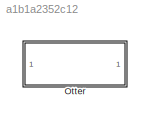
MODEL slx_a1b1a2352c12
KIND library
CONFIG AbsTol = auto
CONFIG EnableMultiTasking = off
CONFIG FixedStep = auto
CONFIG MaxStep = auto
CONFIG MinStep = auto
CONFIG RelTol = 1e-3
CONFIG SampleTimeConstraint = Unconstrained
CONFIG SolverName = VariableStepAuto
CONFIG StartTime = 0.0
CONFIG StopTime = 10.0
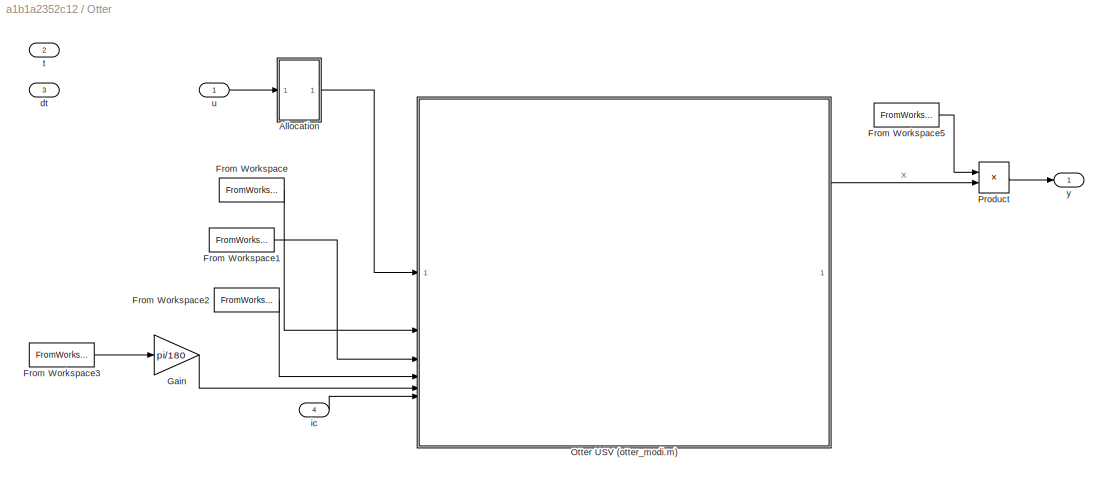
BLOCK [SubSystem] Otter
  Tag = system;__cs_slx_sys;
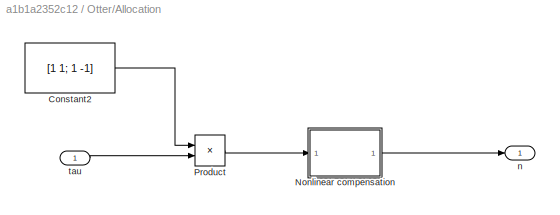
BLOCK [SubSystem] Otter/Allocation
BLOCK [Constant] Otter/Allocation/Constant2
  Value = [1 1; 1 -1]
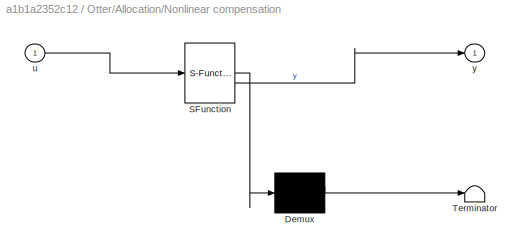
BLOCK [SubSystem] Otter/Allocation/Nonlinear compensation
  ErrorFcn = Stateflow.Translate.translate
  PermitHierarchicalResolution = ExplicitOnly
  SFBlockType = MATLAB Function
  TreatAsAtomicUnit = on
BLOCK [Demux] Otter/Allocation/Nonlinear compensation/ Demux 
  Outputs = 1
BLOCK [S-Function] Otter/Allocation/Nonlinear compensation/ SFunction 
  EnableBusSupport = off
  FunctionName = sf_sfun
  PortCounts = [1 2]
  SFcnIsStateOwnerBlock = off
  SFunctionDeploymentMode = off
  Tag = Stateflow S-Function 2
BLOCK [Terminator] Otter/Allocation/Nonlinear compensation/ Terminator 
BLOCK [Inport] Otter/Allocation/Nonlinear compensation/u
BLOCK [Outport] Otter/Allocation/Nonlinear compensation/y
BLOCK [Product] Otter/Allocation/Product
  Multiplication = Matrix(*)
BLOCK [Outport] Otter/Allocation/n
BLOCK [Inport] Otter/Allocation/tau
BLOCK [FromWorkspace] Otter/From Workspace
  OutputAfterFinalValue = Holding final value
  SampleTime = -1
  VariableName = params.payload_mass
BLOCK [FromWorkspace] Otter/From Workspace1
  OutputAfterFinalValue = Holding final value
  SampleTime = -1
  VariableName = params.payload_location
BLOCK [FromWorkspace] Otter/From Workspace2
  OutputAfterFinalValue = Holding final value
  SampleTime = -1
  VariableName = params.current_speed
BLOCK [FromWorkspace] Otter/From Workspace3
  OutputAfterFinalValue = Holding final value
  SampleTime = -1
  VariableName = params.current_direction
BLOCK [FromWorkspace] Otter/From Workspace5
  OutputAfterFinalValue = Holding final value
  SampleTime = -1
  VariableName = params.out_gain
BLOCK [Gain] Otter/Gain
  Gain = pi/180
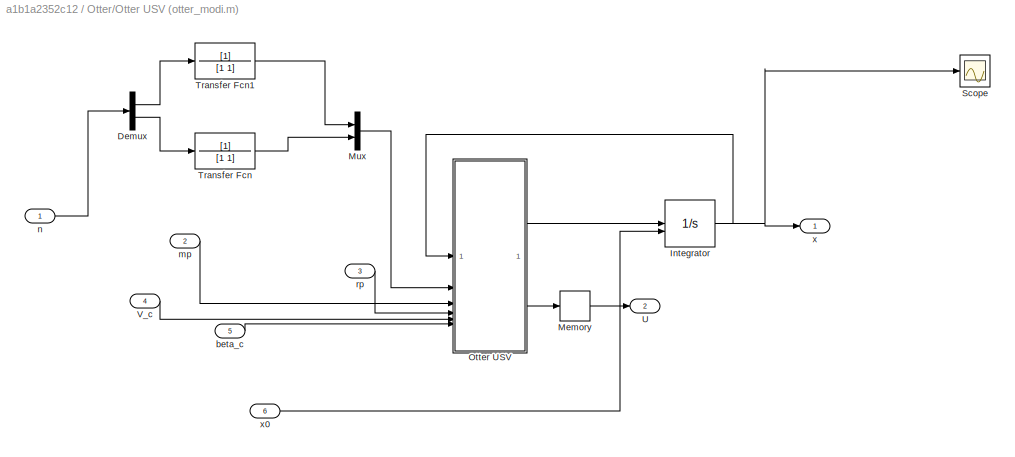
BLOCK [SubSystem] Otter/Otter USV (otter_modi.m) 
  AncestorBlock = mssSimulink/Marine craft models/Otter USV (otter.m)
  LibrarySourceBlock = mssSimulink/Marine craft models/Otter USV (otter.m)
BLOCK [Demux] Otter/Otter USV (otter_modi.m) /Demux
  Outputs = 2
BLOCK [Integrator] Otter/Otter USV (otter_modi.m) /Integrator
  InitialCondition = [1 1]
  InitialConditionSource = external
  LowerSaturationLimit = -10
  UpperSaturationLimit = 10
BLOCK [Memory] Otter/Otter USV (otter_modi.m) /Memory
BLOCK [Mux] Otter/Otter USV (otter_modi.m) /Mux
  DisplayOption = bar
  Inputs = 2
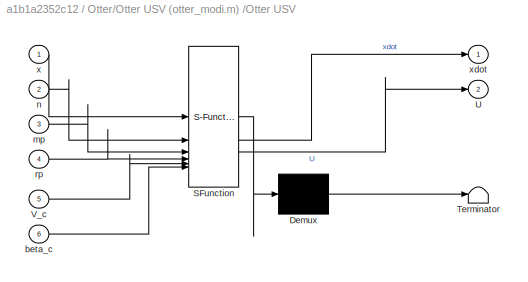
BLOCK [SubSystem] Otter/Otter USV (otter_modi.m) /Otter USV
  ErrorFcn = Stateflow.Translate.translate
  PermitHierarchicalResolution = ExplicitOnly
  SFBlockType = MATLAB Function
  TreatAsAtomicUnit = on
BLOCK [Demux] Otter/Otter USV (otter_modi.m) /Otter USV/ Demux 
  Outputs = 1
BLOCK [S-Function] Otter/Otter USV (otter_modi.m) /Otter USV/ SFunction 
  EnableBusSupport = off
  FunctionName = sf_sfun
  PortCounts = [6 3]
  SFcnIsStateOwnerBlock = off
  SFunctionDeploymentMode = off
  Tag = Stateflow S-Function 3
BLOCK [Terminator] Otter/Otter USV (otter_modi.m) /Otter USV/ Terminator 
BLOCK [Outport] Otter/Otter USV (otter_modi.m) /Otter USV/U
  Port = 2
BLOCK [Inport] Otter/Otter USV (otter_modi.m) /Otter USV/V_c
  Port = 5
BLOCK [Inport] Otter/Otter USV (otter_modi.m) /Otter USV/beta_c
  Port = 6
BLOCK [Inport] Otter/Otter USV (otter_modi.m) /Otter USV/mp
  Port = 3
BLOCK [Inport] Otter/Otter USV (otter_modi.m) /Otter USV/n
  Port = 2
BLOCK [Inport] Otter/Otter USV (otter_modi.m) /Otter USV/rp
  Port = 4
BLOCK [Inport] Otter/Otter USV (otter_modi.m) /Otter USV/x
BLOCK [Outport] Otter/Otter USV (otter_modi.m) /Otter USV/xdot
BLOCK [Scope] Otter/Otter USV (otter_modi.m) /Scope
  Floating = off
  NumInputPorts = 1
  ScopeSpecificationString = Simulink.scopes.TimeScopeBlockCfg('CurrentConfiguration', extmgr.ConfigurationSet(extmgr.Configuration('Core','General UI',true),extmgr.Configuration('Core','Source UI',true),extmgr.Configuration('Sources','WiredSimulink',true,'DataLoggingVariableName','ScopeData1'),extmgr.Configuration('Visuals','Time Domain',true,'SerializedDisplays',{struct('MinYLimReal','-1.29073','MaxYLimReal','6.75844','YLab...<+1540ch>
BLOCK [TransferFcn] Otter/Otter USV (otter_modi.m) /Transfer Fcn
  Denominator = [1 1]
BLOCK [TransferFcn] Otter/Otter USV (otter_modi.m) /Transfer Fcn1
  Denominator = [1 1]
BLOCK [Outport] Otter/Otter USV (otter_modi.m) /U
  Port = 2
BLOCK [Inport] Otter/Otter USV (otter_modi.m) /V_c
  Port = 4
BLOCK [Inport] Otter/Otter USV (otter_modi.m) /beta_c
  Port = 5
BLOCK [Inport] Otter/Otter USV (otter_modi.m) /mp
  Port = 2
BLOCK [Inport] Otter/Otter USV (otter_modi.m) /n
BLOCK [Inport] Otter/Otter USV (otter_modi.m) /rp
  Port = 3
BLOCK [Outport] Otter/Otter USV (otter_modi.m) /x
BLOCK [Inport] Otter/Otter USV (otter_modi.m) /x0
  Port = 6
BLOCK [Product] Otter/Product
BLOCK [Inport] Otter/dt
  Port = 3
BLOCK [Inport] Otter/ic
  Port = 4
BLOCK [Inport] Otter/t
  Port = 2
BLOCK [Inport] Otter/u
  PortDimensions = 2
BLOCK [Outport] Otter/y
  PortDimensions = 12
LINE Otter/Allocation/Constant2:1 -> Otter/Allocation/Product:1
LINE Otter/Allocation/Nonlinear compensation:1 -> Otter/Allocation/n:1
LINE Otter/Allocation/Product:1 -> Otter/Allocation/Nonlinear compensation:1
LINE Otter/Allocation/tau:1 -> Otter/Allocation/Product:2
LINE Otter/Allocation:1 -> Otter/Otter USV (otter_modi.m) :1
LINE Otter/From Workspace1:1 -> Otter/Otter USV (otter_modi.m) :3
LINE Otter/From Workspace2:1 -> Otter/Otter USV (otter_modi.m) :4
LINE Otter/From Workspace3:1 -> Otter/Gain:1
LINE Otter/From Workspace5:1 -> Otter/Product:1
LINE Otter/From Workspace:1 -> Otter/Otter USV (otter_modi.m) :2
LINE Otter/Gain:1 -> Otter/Otter USV (otter_modi.m) :5
LINE Otter/Otter USV (otter_modi.m) :1 -> Otter/Product:2
LINE Otter/Product:1 -> Otter/y:1
LINE Otter/ic:1 -> Otter/Otter USV (otter_modi.m) :6
LINE Otter/u:1 -> Otter/Allocation:1
CHART Otter/Allocation/Nonlinear compensation states=1 transitions=1
  STATE_LABEL 'eML_blk_kernel()'
  STATE_LABEL 'SCRIPT:\nfunction y = fcn(u)\n\ngain_pos = 1.0802e+04;\ngain_neg = -1.0350e+04;\ny = zeros(2, 1);\nfor i=1:2\n    if u(i) > 0\n        y(i) = sqrt(gain_pos * u(i));\n    else\n        y(i) = -sqrt(gain_neg * u(i));\n    end\nend\nend'
CHART Otter/Otter USV (otter_modi.m) /Otter USV states=1 transitions=1
  STATE_LABEL 'eML_blk_kernel()'
  STATE_LABEL 'SCRIPT:\nfunction [xdot, U] = fcn(x,n,mp,rp,V_c,beta_c)\n\n[xdot,U] = otter(x,n,mp,rp,V_c,beta_c);\n\nend\n\n'
CHART  states=0 transitions=0
CHART  states=0 transitions=0
